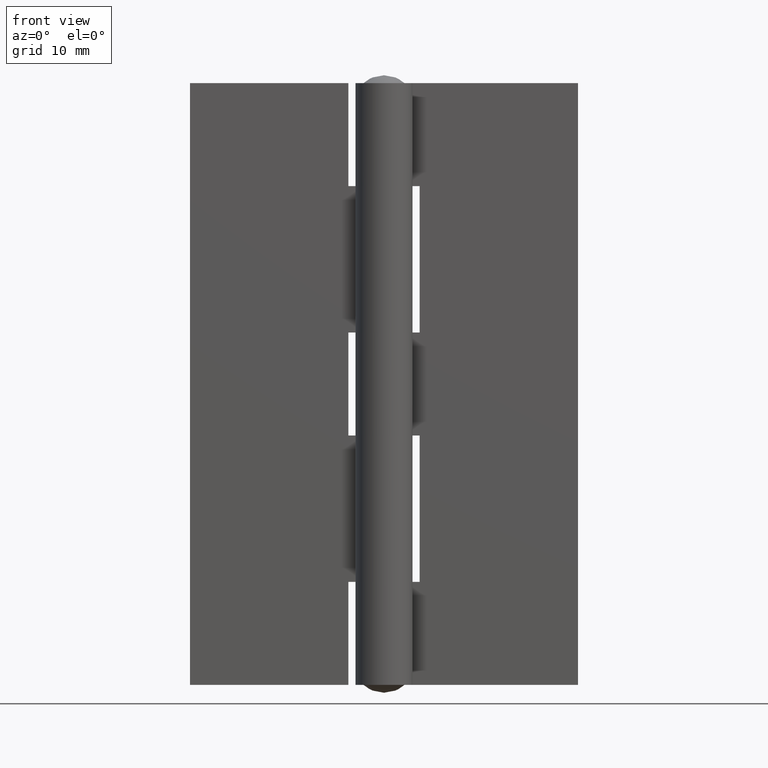
[diagram: clean part render]
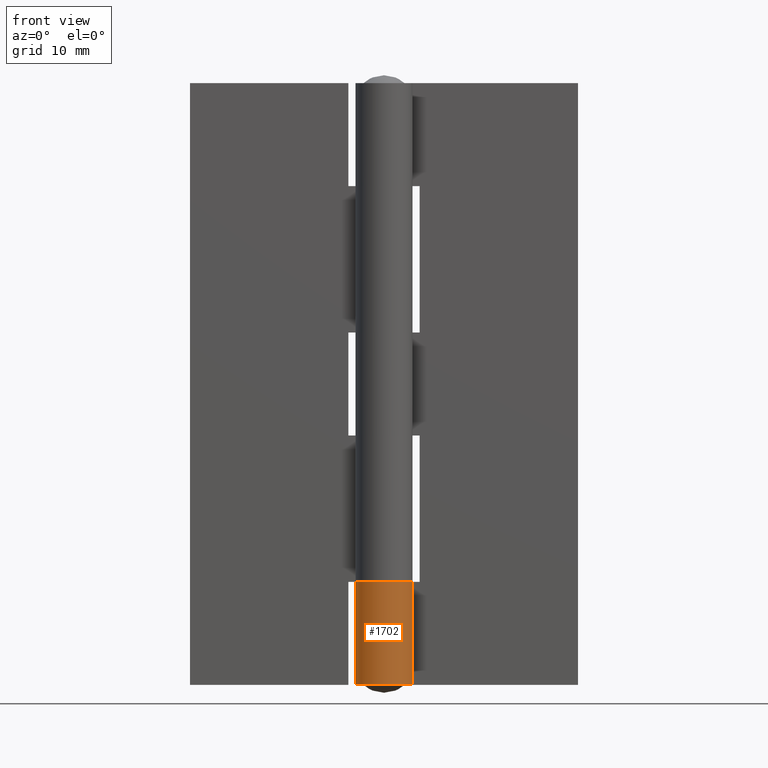
[diagram: same view with one face highlighted and labeled with its STEP entity id]
A machine part, front view. The second image highlights one B-rep face of the part: STEP entity #1702.
In plain terms, the highlighted face is a freeform B-spline surface patch.
Its self-contained STEP definition (entity closure, byte-faithful):
#1489=CARTESIAN_POINT('',(2.959308736849890,2.049998000000030,13.0));
#1490=VERTEX_POINT('',#1489);
#1499=CARTESIAN_POINT('',(0.003794732611929,3.599998000000105,13.0));
#1500=VERTEX_POINT('',#1499);
#1506=CARTESIAN_POINT('',(1.387779E-014,3.599998000000105,13.0));
#1507=VERTEX_POINT('',#1506);
#1508=CARTESIAN_POINT('',(1.387779E-014,3.599998000000105,13.0));
#1509=CARTESIAN_POINT('',(0.003794732611929,3.599998000000105,13.0));
#1510=QUASI_UNIFORM_CURVE('',1,(#1508,#1509),.UNSPECIFIED.,.F.,.U.);
#1511=EDGE_CURVE('',#1507,#1500,#1510,.T.);
#1513=CARTESIAN_POINT('',(2.959308736849890,2.049998000000030,13.0));
#1514=CARTESIAN_POINT('',(3.122607702109062,1.814374028835846,12.999999999999989));
#1515=CARTESIAN_POINT('',(3.345473901710298,1.392620120973805,13.000000000000030));
#1516=CARTESIAN_POINT('',(3.577211806604513,0.613667057795095,12.999999999999989));
#1517=CARTESIAN_POINT('',(3.631574580686017,-0.152223373950544,12.999999999999970));
#1518=CARTESIAN_POINT('',(3.491172671600304,-0.979645994435466,13.000000000000149));
#1519=CARTESIAN_POINT('',(3.242674914115689,-1.609500763174845,12.999999999999790));
#1520=CARTESIAN_POINT('',(2.878990050433832,-2.192762711032079,13.000000000000171));
#1521=CARTESIAN_POINT('',(2.442449150886499,-2.676562923895130,13.000000000000149));
#1522=CARTESIAN_POINT('',(1.819583173478431,-3.139702713042635,12.999999999999959));
#1523=CARTESIAN_POINT('',(1.108834572221011,-3.458171753566647,12.999999999999700));
#1524=CARTESIAN_POINT('',(0.407692603163266,-3.594875351025005,13.000000000000121));
#1525=CARTESIAN_POINT('',(-0.266784993414320,-3.609249787195763,12.999999999999920));
#1526=CARTESIAN_POINT('',(-1.034865431939565,-3.489109940384204,13.000000000000041));
#1527=CARTESIAN_POINT('',(-1.808966987641024,-3.152918726518022,12.999999999999989));
#1528=CARTESIAN_POINT('',(-2.437385417279727,-2.676283526525329,13.0));
#1529=CARTESIAN_POINT('',(-2.960820158206002,-2.103612443305749,13.000000000000060));
#1530=CARTESIAN_POINT('',(-3.324561556619787,-1.456145059580546,12.999999999999851));
#1531=CARTESIAN_POINT('',(-3.530739304191530,-0.773940774214516,13.000000000000130));
#1532=CARTESIAN_POINT('',(-3.625366261707139,-0.092822437968715,13.000000000000441));
#1533=CARTESIAN_POINT('',(-3.575339570859407,0.621876848621223,12.999999999999689));
#1534=CARTESIAN_POINT('',(-3.383346500578519,1.269740297293431,13.000000000000330));
#1535=CARTESIAN_POINT('',(-3.139397067527439,1.789835792106823,12.999999999999810));
#1536=CARTESIAN_POINT('',(-2.847345808358605,2.226782182878580,13.000000000000050));
#1537=CARTESIAN_POINT('',(-2.457710033504351,2.649220428881522,13.000000000000011));
#1538=CARTESIAN_POINT('',(-2.008584767964019,3.008845192975969,12.999999999999909));
#1539=CARTESIAN_POINT('',(-1.427769188788439,3.329028428080859,13.000000000000460));
#1540=CARTESIAN_POINT('',(-0.747845883334927,3.548010742121012,12.999999999998840));
#1541=CARTESIAN_POINT('',(-0.249281695685570,3.600033587327842,13.000000000001320));
#1542=CARTESIAN_POINT('',(1.387779E-014,3.599998000000105,13.0));
#1543=B_SPLINE_CURVE_WITH_KNOTS('',3,(#1513,#1514,#1515,#1516,#1517,#1518,#1519,#1520,#1521,#1522,#1523,#1524,#1525,#1526,#1527,#1528,#1529,#1530,#1531,#1532,#1533,#1534,#1535,#1536,#1537,#1538,#1539,#1540,#1541,#1542),.UNSPECIFIED.,.F.,.U.,(4,1,1,1,1,1,1,1,1,1,1,1,1,1,1,1,1,1,1,1,1,1,1,1,1,1,1,4),(0.000000432281663,0.860025270183591,1.420946139020135,2.430604782230169,3.141091671843373,3.926390057006245,4.449910532059082,5.197710504863814,5.870811498723851,6.768286861982384,7.516177570513065,8.002310485064161,8.787568083235547,9.834579087858119,10.507661761601620,11.143359152815830,12.153017126553360,12.713939303546670,13.274858138508799,14.209718255226511,14.845330555792099,15.294078961822800,15.929776353927339,16.415909268532712,17.014223374679769,17.649932251738988,18.397828081916131,19.145669221567239),.UNSPECIFIED.);
#1544=EDGE_CURVE('',#1490,#1507,#1543,.T.);
#1554=CARTESIAN_POINT('',(2.959308736849890,2.049998000000030,0.0));
#1555=VERTEX_POINT('',#1554);
#1556=CARTESIAN_POINT('',(0.003794732611929,3.599998000000085,0.0));
#1557=VERTEX_POINT('',#1556);
#1558=CARTESIAN_POINT('',(2.959308736849890,2.049998000000030,0.0));
#1559=CARTESIAN_POINT('',(3.094212135690110,1.855302404373483,0.0));
#1560=CARTESIAN_POINT('',(3.313196733198469,1.461049702338940,0.0));
#1561=CARTESIAN_POINT('',(3.557506324038430,0.724511201913111,0.0));
#1562=CARTESIAN_POINT('',(3.634064370071986,-0.064388934811113,0.0));
#1563=CARTESIAN_POINT('',(3.527385170806085,-0.808876516419573,0.0));
#1564=CARTESIAN_POINT('',(3.284565958169941,-1.544904578668162,0.0));
#1565=CARTESIAN_POINT('',(2.884980771044996,-2.216077721149945,0.0));
#1566=CARTESIAN_POINT('',(2.299364597372065,-2.800439905851231,0.0));
#1567=CARTESIAN_POINT('',(1.746848745247122,-3.168029660659517,0.0));
#1568=CARTESIAN_POINT('',(1.117635166006214,-3.445782930083340,0.0));
#1569=CARTESIAN_POINT('',(0.456858976141886,-3.595953376591390,0.0));
#1570=CARTESIAN_POINT('',(-0.268910443903124,-3.611066265922567,0.0));
#1571=CARTESIAN_POINT('',(-0.985511079796558,-3.490923549240923,0.0));
#1572=CARTESIAN_POINT('',(-1.743272309625648,-3.189109347824653,0.0));
#1573=CARTESIAN_POINT('',(-2.388359252475621,-2.730417420975146,0.0));
#1574=CARTESIAN_POINT('',(-2.860787790706859,-2.212663393518409,0.0));
#1575=CARTESIAN_POINT('',(-3.240829989952835,-1.624454128062709,0.0));
#1576=CARTESIAN_POINT('',(-3.477633293591322,-1.015558229115094,0.0));
#1577=CARTESIAN_POINT('',(-3.610916181736069,-0.277730653881832,0.0));
#1578=CARTESIAN_POINT('',(-3.605432594039101,0.387699002831569,0.0));
#1579=CARTESIAN_POINT('',(-3.465835729151197,1.023366703839256,0.0));
#1580=CARTESIAN_POINT('',(-3.246414502046255,1.594738250865328,0.0));
#1581=CARTESIAN_POINT('',(-2.921657979911891,2.145376582892715,0.0));
#1582=CARTESIAN_POINT('',(-2.492923794456172,2.619109831272978,0.0));
#1583=CARTESIAN_POINT('',(-2.024525384928615,2.993438130192299,0.0));
#1584=CARTESIAN_POINT('',(-1.525936395727365,3.281313596665840,0.0));
#1585=CARTESIAN_POINT('',(-0.831511697486219,3.532437728948987,0.0));
#1586=CARTESIAN_POINT('',(-0.307884606244990,3.600415889992982,0.0));
#1587=CARTESIAN_POINT('',(0.003794732611929,3.599998000000085,0.0));
#1588=B_SPLINE_CURVE_WITH_KNOTS('',3,(#1558,#1559,#1560,#1561,#1562,#1563,#1564,#1565,#1566,#1567,#1568,#1569,#1570,#1571,#1572,#1573,#1574,#1575,#1576,#1577,#1578,#1579,#1580,#1581,#1582,#1583,#1584,#1585,#1586,#1587),.UNSPECIFIED.,.F.,.U.,(4,1,1,1,1,1,1,1,1,1,1,1,1,1,1,1,1,1,1,1,1,1,1,1,1,1,1,4),(0.000000432418478,0.710594733791822,1.346425192059407,2.318881693757426,3.066911012514762,3.590551887283571,4.637804252848735,5.385763070463392,6.059003094852832,6.620025929756602,7.442864776002834,8.078699739939180,8.789310838313529,9.612088169899444,10.509745649928099,11.145569129071900,11.706601894398180,12.604240766278760,13.090463575566710,13.950725360082160,14.586461912981260,15.035290170901510,15.783332499836190,16.493968353886672,16.942793814870331,17.578630460307380,18.214453939458881,19.149466254177490),.UNSPECIFIED.);
#1589=EDGE_CURVE('',#1555,#1557,#1588,.T.);
#1660=CARTESIAN_POINT('',(2.959308736849890,2.049998000000030,13.0));
#1661=CARTESIAN_POINT('',(2.959308736849890,2.049998000000030,0.0));
#1662=QUASI_UNIFORM_CURVE('',1,(#1660,#1661),.UNSPECIFIED.,.F.,.U.);
#1663=EDGE_CURVE('',#1490,#1555,#1662,.T.);
#1669=CARTESIAN_POINT('',(0.160820828143759,3.596406075686581,13.324999999999999));
#1670=CARTESIAN_POINT('',(0.160820828143759,3.596406075686581,-0.333124999999999));
#1671=CARTESIAN_POINT('',(-4.387576196689372,3.799797172483284,13.325000000000001));
#1672=CARTESIAN_POINT('',(-4.387576196689372,3.799797172483284,-0.333124999999999));
#1673=CARTESIAN_POINT('',(-3.536552319784790,-0.672902436780157,13.324999999999999));
#1674=CARTESIAN_POINT('',(-3.536552319784790,-0.672902436780157,-0.333124999999999));
#1675=CARTESIAN_POINT('',(-2.685528442880210,-5.145602046043599,13.325000000000001));
#1676=CARTESIAN_POINT('',(-2.685528442880210,-5.145602046043599,-0.333124999999999));
#1677=CARTESIAN_POINT('',(1.470349357163007,-3.286042112920980,13.324999999999999));
#1678=CARTESIAN_POINT('',(1.470349357163007,-3.286042112920980,-0.333124999999999));
#1679=CARTESIAN_POINT('',(5.626227157206222,-1.426482179798364,13.325000000000001));
#1680=CARTESIAN_POINT('',(5.626227157206222,-1.426482179798364,-0.333124999999999));
#1681=CARTESIAN_POINT('',(2.858380525189357,2.188529363115424,13.324999999999999));
#1682=CARTESIAN_POINT('',(2.858380525189357,2.188529363115424,-0.333124999999999));
#1690=(BOUNDED_SURFACE()B_SPLINE_SURFACE(1,2,((#1669,#1671,#1673,#1675,#1677,#1679,#1681),(#1670,#1672,#1674,#1676,#1678,#1680,#1682)),.UNSPECIFIED.,.F.,.F.,.U.)B_SPLINE_SURFACE_WITH_KNOTS((2,2),(3,2,2,3),(0.0,13.658125000000000),(0.0,6.971570265998877,13.943140531997750,20.914710797996630),.UNSPECIFIED.)GEOMETRIC_REPRESENTATION_ITEM()RATIONAL_B_SPLINE_SURFACE(((1.0,0.620235491268260,1.0,0.620235491268260,1.0,0.620235491268260,1.0),(1.0,0.620235491268260,1.0,0.620235491268260,1.0,0.620235491268260,1.0)))REPRESENTATION_ITEM('')SURFACE());
#1691=ORIENTED_EDGE('',*,*,#1544,.T.);
#1692=ORIENTED_EDGE('',*,*,#1511,.T.);
#1693=CARTESIAN_POINT('',(0.003794732611929,3.599998000000105,13.0));
#1694=CARTESIAN_POINT('',(0.003794732611929,3.599998000000085,0.0));
#1695=QUASI_UNIFORM_CURVE('',1,(#1693,#1694),.UNSPECIFIED.,.F.,.U.);
#1696=EDGE_CURVE('',#1500,#1557,#1695,.T.);
#1697=ORIENTED_EDGE('',*,*,#1696,.T.);
#1698=ORIENTED_EDGE('',*,*,#1589,.F.);
#1699=ORIENTED_EDGE('',*,*,#1663,.F.);
#1700=EDGE_LOOP('',(#1691,#1692,#1697,#1698,#1699));
#1701=FACE_OUTER_BOUND('',#1700,.T.);
#1702=ADVANCED_FACE('',(#1701),#1690,.T.);